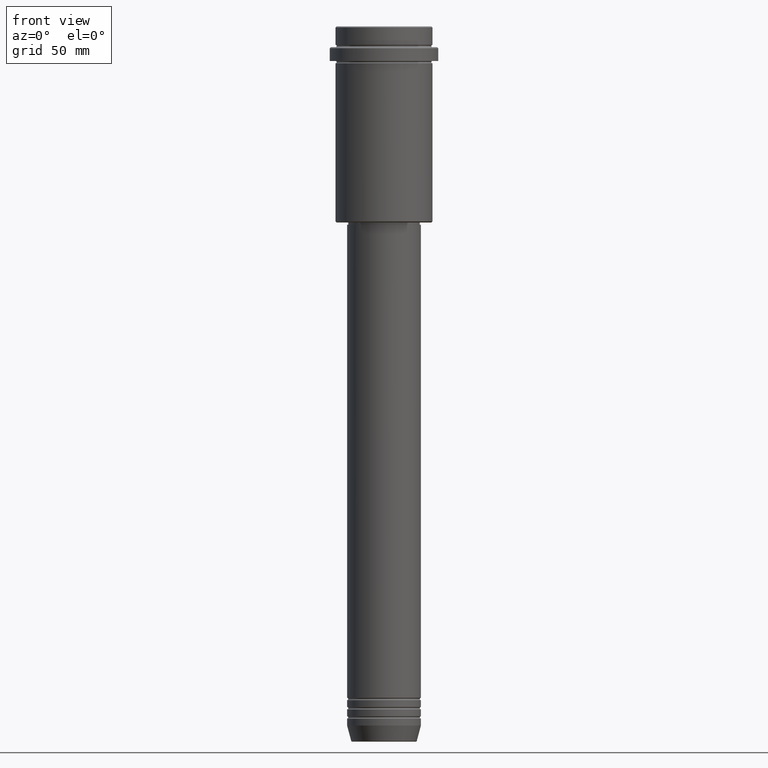
[diagram: clean part render]
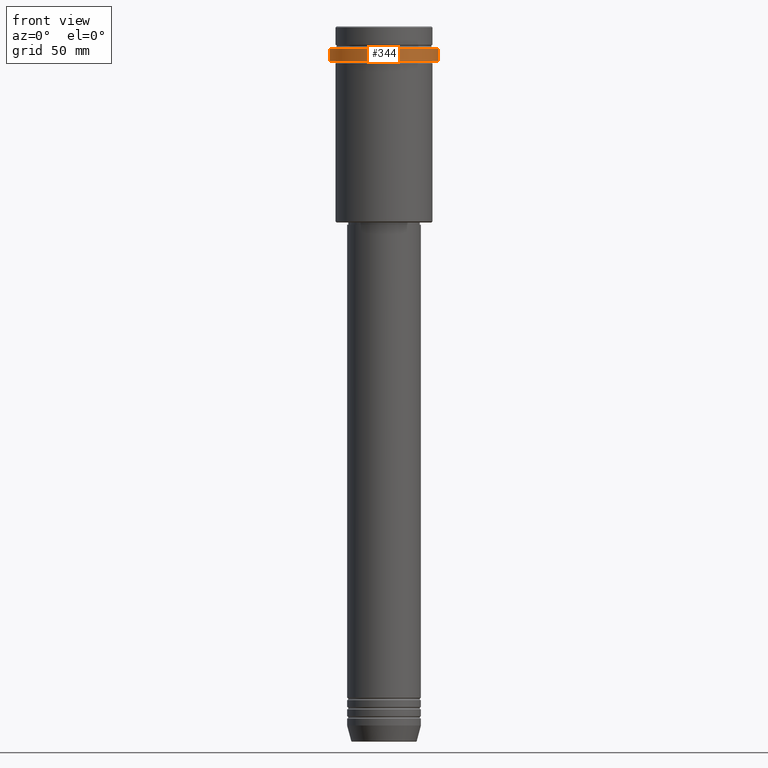
[diagram: same view with one face highlighted and labeled with its STEP entity id]
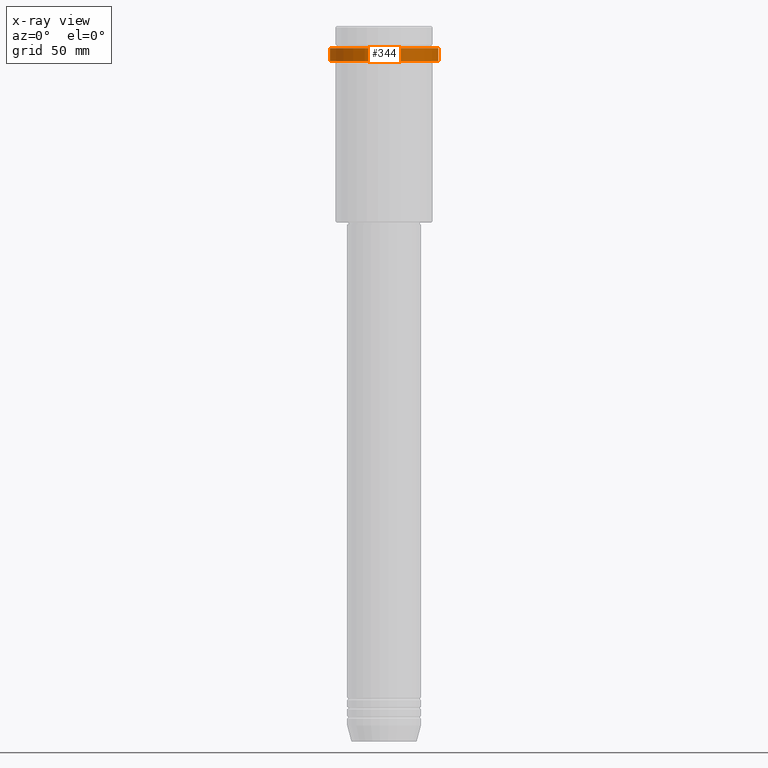
[diagram: x-ray of the same camera — body ghosted, the highlighted face saturated]
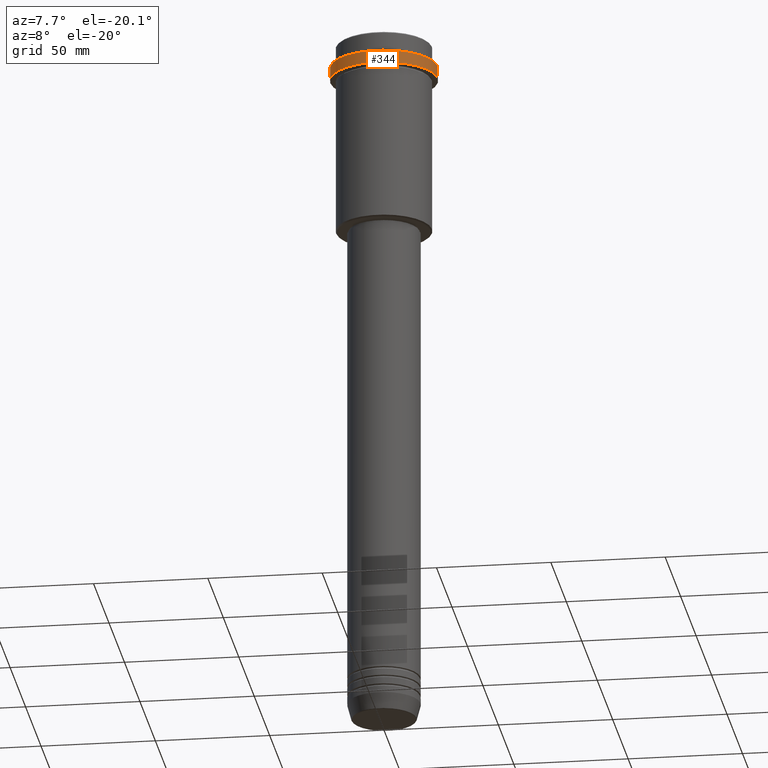
[diagram: same view with one face highlighted and labeled with its STEP entity id]
A machine part, front view. The second image highlights one B-rep face of the part: STEP entity #344.
The next image is the same camera in x-ray: the body ghosted, the highlighted face saturated — about 0% of this face is hidden behind the body in this view.
A second angle (auxiliary view) of the same face is appended — the face is thin or edge-on in the first view.
In plain terms, the highlighted cylindrical surface (partial cylindrical patch) has radius 23.5 mm, axis along (-0, -0, 1).
Its self-contained STEP definition (entity closure, byte-faithful):
#5 = FACE_OUTER_BOUND ( 'NONE', #737, .T. ) ;
#32 = DIRECTION ( 'NONE',  ( 0.000000000000000000, 0.000000000000000000, -1.000000000000000000 ) ) ;
#82 = CARTESIAN_POINT ( 'NONE',  ( -23.50000000000000000, 2.877919977996280320E-15, -9.500000000000000000 ) ) ;
#132 = LINE ( 'NONE', #582, #411 ) ;
#215 = EDGE_CURVE ( 'NONE', #797, #226, #841, .T. ) ;
#226 = VERTEX_POINT ( 'NONE', #82 ) ;
#233 = VERTEX_POINT ( 'NONE', #1186 ) ;
#250 = DIRECTION ( 'NONE',  ( 1.000000000000000000, 0.000000000000000000, 0.000000000000000000 ) ) ;
#310 = AXIS2_PLACEMENT_3D ( 'NONE', #1157, #710, #468 ) ;
#330 = AXIS2_PLACEMENT_3D ( 'NONE', #1111, #1223, #891 ) ;
#332 = CIRCLE ( 'NONE', #951, 23.50000000000000000 ) ;
#344 = ADVANCED_FACE ( 'NONE', ( #5 ), #440, .T. ) ;
#369 = CARTESIAN_POINT ( 'NONE',  ( 0.000000000000000000, 0.000000000000000000, -9.500000000000000000 ) ) ;
#411 = VECTOR ( 'NONE', #1354, 1000.000000000000000 ) ;
#418 = VERTEX_POINT ( 'NONE', #1240 ) ;
#424 = ORIENTED_EDGE ( 'NONE', *, *, #1107, .T. ) ;
#438 = ORIENTED_EDGE ( 'NONE', *, *, #485, .T. ) ;
#440 = CYLINDRICAL_SURFACE ( 'NONE', #330, 23.50000000000000000 ) ;
#443 = EDGE_CURVE ( 'NONE', #418, #226, #332, .T. ) ;
#468 = DIRECTION ( 'NONE',  ( 1.000000000000000000, 0.000000000000000000, 0.000000000000000000 ) ) ;
#485 = EDGE_CURVE ( 'NONE', #797, #233, #664, .T. ) ;
#582 = CARTESIAN_POINT ( 'NONE',  ( 23.50000000000000000, 0.000000000000000000, 0.000000000000000000 ) ) ;
#664 = CIRCLE ( 'NONE', #310, 23.50000000000000355 ) ;
#710 = DIRECTION ( 'NONE',  ( -0.000000000000000000, -0.000000000000000000, 1.000000000000000000 ) ) ;
#737 = EDGE_LOOP ( 'NONE', ( #753, #438, #424, #1046 ) ) ;
#753 = ORIENTED_EDGE ( 'NONE', *, *, #215, .F. ) ;
#797 = VERTEX_POINT ( 'NONE', #925 ) ;
#841 = LINE ( 'NONE', #1405, #1239 ) ;
#891 = DIRECTION ( 'NONE',  ( 1.000000000000000000, 0.000000000000000000, 0.000000000000000000 ) ) ;
#925 = CARTESIAN_POINT ( 'NONE',  ( -23.50000000000000711, 2.877919977996281109E-15, -15.00000000000000000 ) ) ;
#951 = AXIS2_PLACEMENT_3D ( 'NONE', #369, #32, #250 ) ;
#1046 = ORIENTED_EDGE ( 'NONE', *, *, #443, .T. ) ;
#1084 = DIRECTION ( 'NONE',  ( -0.000000000000000000, -0.000000000000000000, 1.000000000000000000 ) ) ;
#1107 = EDGE_CURVE ( 'NONE', #233, #418, #132, .T. ) ;
#1111 = CARTESIAN_POINT ( 'NONE',  ( 0.000000000000000000, 0.000000000000000000, 0.000000000000000000 ) ) ;
#1157 = CARTESIAN_POINT ( 'NONE',  ( 0.000000000000000000, 0.000000000000000000, -15.00000000000000000 ) ) ;
#1186 = CARTESIAN_POINT ( 'NONE',  ( 23.50000000000000355, 0.000000000000000000, -15.00000000000000000 ) ) ;
#1223 = DIRECTION ( 'NONE',  ( -0.000000000000000000, -0.000000000000000000, 1.000000000000000000 ) ) ;
#1239 = VECTOR ( 'NONE', #1084, 1000.000000000000000 ) ;
#1240 = CARTESIAN_POINT ( 'NONE',  ( 23.50000000000000000, 0.000000000000000000, -9.500000000000000000 ) ) ;
#1354 = DIRECTION ( 'NONE',  ( -0.000000000000000000, -0.000000000000000000, 1.000000000000000000 ) ) ;
#1405 = CARTESIAN_POINT ( 'NONE',  ( -23.50000000000000000, 2.877919977996280320E-15, 0.000000000000000000 ) ) ;